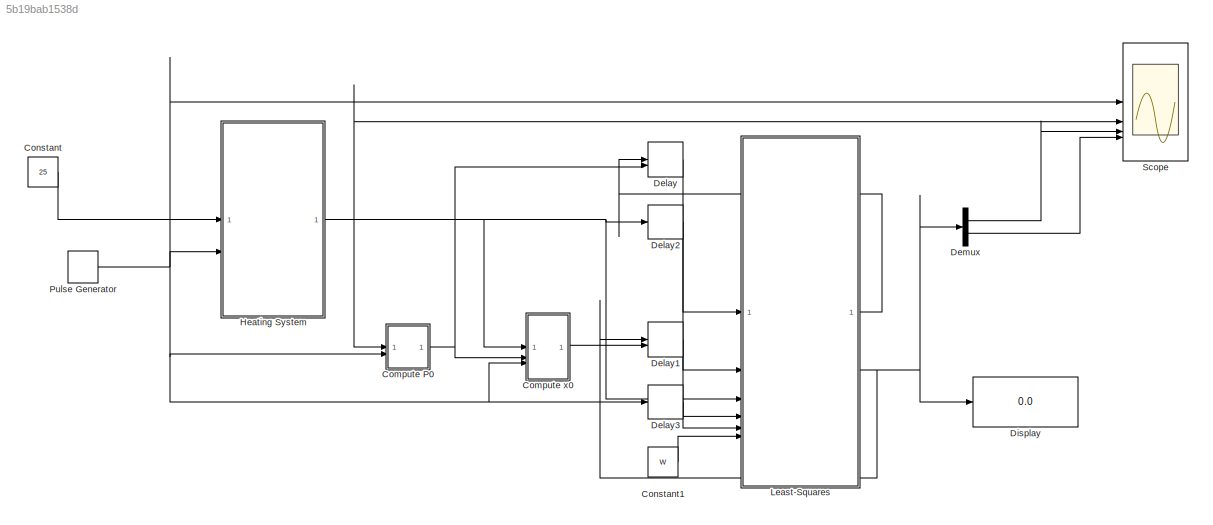
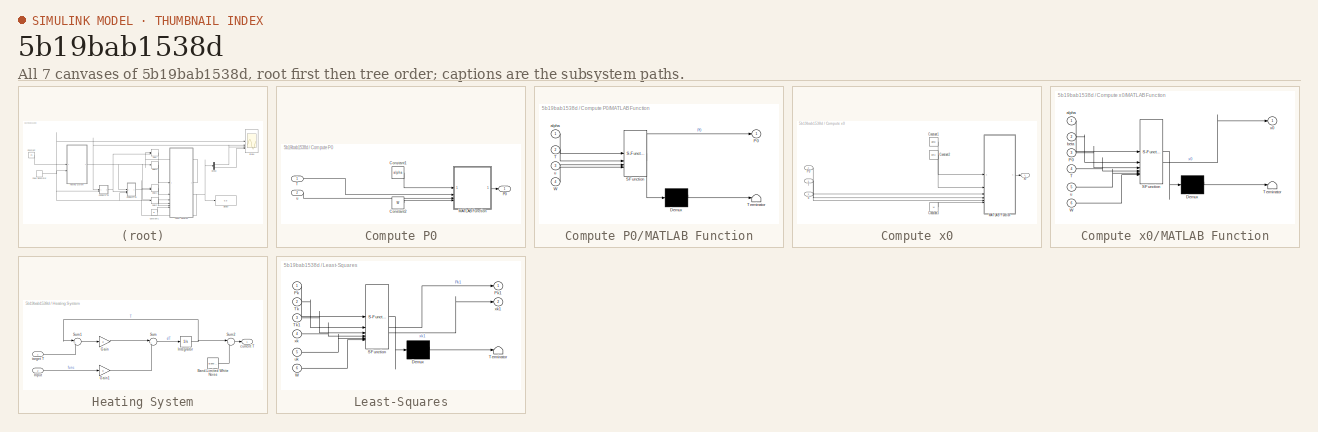
[diagram: thumbnail index - all 7 canvases of the model, root first then tree order]
MODEL slx_5b19bab1538d
KIND model
CONFIG AbsTol = auto
CONFIG EnableMultiTasking = off
CONFIG FixedStep = auto
CONFIG MaxStep = auto
CONFIG MinStep = auto
CONFIG RelTol = 1e-3
CONFIG SampleTimeConstraint = Unconstrained
CONFIG SolverName = VariableStepAuto
CONFIG StartTime = 0.0
CONFIG StopTime = 400.0
WORKSPACE source: MATLAB code (in-file)
WORKSPACE tau = 20
WORKSPACE Kp = 0.5
WORKSPACE sigma = 0.08
WORKSPACE alpha = 1E3  (= 1000)
WORKSPACE code: beta = [1E-2; 1E-2];
WORKSPACE delta_t = 0.1
WORKSPACE a = -1 / tau  (= -0.05)
WORKSPACE b = Kp / tau  (= 0.025)
WORKSPACE W = 1 / sigma^2  (= 156.25)
BLOCK [SubSystem] Compute P0
BLOCK [Constant] Compute P0/Constant1
  Value = alpha
BLOCK [Constant] Compute P0/Constant2
  Value = W
BLOCK [SubSystem] Compute P0/MATLAB Function
  ErrorFcn = Stateflow.Translate.translate
  PermitHierarchicalResolution = ExplicitOnly
  SFBlockType = MATLAB Function
  TreatAsAtomicUnit = on
BLOCK [Demux] Compute P0/MATLAB Function/ Demux 
  Outputs = 1
BLOCK [S-Function] Compute P0/MATLAB Function/ SFunction 
  EnableBusSupport = on
  FunctionName = sf_sfun
  PortCounts = [4 2]
  SFcnIsStateOwnerBlock = off
  SFunctionDeploymentMode = off
  Tag = Stateflow S-Function 2
BLOCK [Terminator] Compute P0/MATLAB Function/ Terminator 
BLOCK [Outport] Compute P0/MATLAB Function/P0
BLOCK [Inport] Compute P0/MATLAB Function/T
  Port = 2
BLOCK [Inport] Compute P0/MATLAB Function/W
  Port = 4
BLOCK [Inport] Compute P0/MATLAB Function/alpha
BLOCK [Inport] Compute P0/MATLAB Function/u
  Port = 3
BLOCK [Outport] Compute P0/P0
BLOCK [Inport] Compute P0/T
BLOCK [Inport] Compute P0/u
  Port = 2
BLOCK [SubSystem] Compute x0
BLOCK [Constant] Compute x0/Constant1
  Value = alpha
BLOCK [Constant] Compute x0/Constant2
  Value = beta
BLOCK [Constant] Compute x0/Constant3
  Value = W
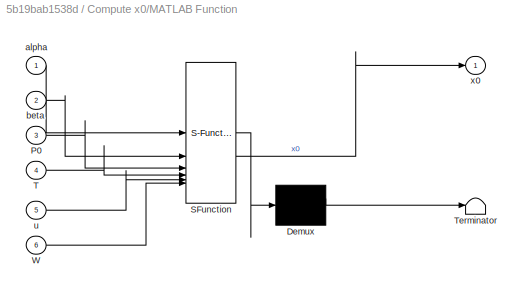
BLOCK [SubSystem] Compute x0/MATLAB Function
  ErrorFcn = Stateflow.Translate.translate
  PermitHierarchicalResolution = ExplicitOnly
  SFBlockType = MATLAB Function
  TreatAsAtomicUnit = on
BLOCK [Demux] Compute x0/MATLAB Function/ Demux 
  Outputs = 1
BLOCK [S-Function] Compute x0/MATLAB Function/ SFunction 
  EnableBusSupport = on
  FunctionName = sf_sfun
  PortCounts = [6 2]
  SFcnIsStateOwnerBlock = off
  SFunctionDeploymentMode = off
  Tag = Stateflow S-Function 3
BLOCK [Terminator] Compute x0/MATLAB Function/ Terminator 
BLOCK [Inport] Compute x0/MATLAB Function/P0
  Port = 3
BLOCK [Inport] Compute x0/MATLAB Function/T
  Port = 4
BLOCK [Inport] Compute x0/MATLAB Function/W
  Port = 6
BLOCK [Inport] Compute x0/MATLAB Function/alpha
BLOCK [Inport] Compute x0/MATLAB Function/beta
  Port = 2
BLOCK [Inport] Compute x0/MATLAB Function/u
  Port = 5
BLOCK [Outport] Compute x0/MATLAB Function/x0
BLOCK [Inport] Compute x0/P0
  Port = 2
BLOCK [Inport] Compute x0/T
BLOCK [Inport] Compute x0/u
  Port = 3
BLOCK [Outport] Compute x0/x0
BLOCK [Constant] Constant
  Value = 25
BLOCK [Constant] Constant1
  Value = W
BLOCK [Delay] Delay
  DelayLength = 1
  InitialCondition = 0
  InitialConditionSource = Input port
  InputPortMap = u0,p4
  SampleTime = delta_t
BLOCK [Delay] Delay1
  DelayLength = 1
  InitialCondition = 0
  InitialConditionSource = Input port
  InputPortMap = u0,p4
  SampleTime = delta_t
BLOCK [Delay] Delay2
  DelayLength = 1
  InitialCondition = 0
  InputPortMap = u0
  SampleTime = delta_t
BLOCK [Delay] Delay3
  DelayLength = 1
  InitialCondition = 0
  InputPortMap = u0
  SampleTime = delta_t
BLOCK [Demux] Demux
  Outputs = 2
BLOCK [Display] Display
  Decimation = 1
BLOCK [SubSystem] Heating System
BLOCK [Reference] Heating System/Band-Limited White Noise  REF=simulink/Sources/Band-Limited
White Noise
  SourceBlock = simulink/Sources/Band-Limited\nWhite Noise
  SourceType = Band-Limited White Noise.
BLOCK [Gain] Heating System/Gain
  Gain = a
BLOCK [Gain] Heating System/Gain1
  Gain = b
BLOCK [Inport] Heating System/Input
  IconDisplay = Signal name
  Port = 2
BLOCK [Integrator] Heating System/Integrator
BLOCK [Sum] Heating System/Sum
  Inputs = |++
BLOCK [Sum] Heating System/Sum1
  Inputs = |+-
BLOCK [Sum] Heating System/Sum2
  Inputs = |++
BLOCK [Outport] Heating System/current T
BLOCK [Inport] Heating System/target T
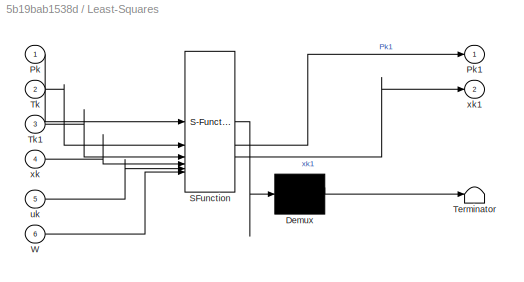
BLOCK [SubSystem] Least-Squares
  ErrorFcn = Stateflow.Translate.translate
  PermitHierarchicalResolution = ExplicitOnly
  SFBlockType = MATLAB Function
  SystemSampleTime = delta_t
  TreatAsAtomicUnit = on
BLOCK [Demux] Least-Squares/ Demux 
  Outputs = 1
BLOCK [S-Function] Least-Squares/ SFunction 
  EnableBusSupport = on
  FunctionName = sf_sfun
  PortCounts = [6 3]
  SFcnIsStateOwnerBlock = off
  SFunctionDeploymentMode = off
  Tag = Stateflow S-Function 1
BLOCK [Terminator] Least-Squares/ Terminator 
BLOCK [Inport] Least-Squares/Pk
BLOCK [Outport] Least-Squares/Pk1
BLOCK [Inport] Least-Squares/Tk
  Port = 2
BLOCK [Inport] Least-Squares/Tk1
  Port = 3
BLOCK [Inport] Least-Squares/W
  Port = 6
BLOCK [Inport] Least-Squares/uk
  Port = 5
BLOCK [Inport] Least-Squares/xk
  Port = 4
BLOCK [Outport] Least-Squares/xk1
  Port = 2
BLOCK [DiscretePulseGenerator] Pulse Generator
  Amplitude = 100
  Period = 10
  PulseType = Time based
  PulseWidth = 50
BLOCK [Scope] Scope
  Floating = off
  NumInputPorts = 4
  ScopeSpecificationString = Simulink.scopes.TimeScopeBlockCfg('CurrentConfiguration', extmgr.ConfigurationSet(extmgr.Configuration('Core','General UI',true),extmgr.Configuration('Core','Source UI',true),extmgr.Configuration('Sources','WiredSimulink',true),extmgr.Configuration('Visuals','Time Domain',true,'SerializedDisplays',{struct('MinYLimReal','-12.5','MaxYLimReal','112.5','YLabelReal','','MinYLimMag','0.00000','MaxYLimMa...<+3386ch>
LINE Compute P0/Constant1:1 -> Compute P0/MATLAB Function:1
LINE Compute P0/Constant2:1 -> Compute P0/MATLAB Function:4
LINE Compute P0/MATLAB Function:1 -> Compute P0/P0:1
LINE Compute P0/T:1 -> Compute P0/MATLAB Function:2
LINE Compute P0/u:1 -> Compute P0/MATLAB Function:3
NET Compute P0:1 -> Compute x0:2, Delay:2
LINE Compute x0/Constant1:1 -> Compute x0/MATLAB Function:1
LINE Compute x0/Constant2:1 -> Compute x0/MATLAB Function:2
LINE Compute x0/Constant3:1 -> Compute x0/MATLAB Function:6
LINE Compute x0/MATLAB Function:1 -> Compute x0/x0:1
LINE Compute x0/P0:1 -> Compute x0/MATLAB Function:3
LINE Compute x0/T:1 -> Compute x0/MATLAB Function:4
LINE Compute x0/u:1 -> Compute x0/MATLAB Function:5
LINE Compute x0:1 -> Delay1:2
LINE Constant1:1 -> Least-Squares:6
LINE Constant:1 -> Heating System:1
LINE Delay1:1 -> Least-Squares:4
LINE Delay2:1 -> Least-Squares:2
LINE Delay3:1 -> Least-Squares:5
LINE Delay:1 -> Least-Squares:1
LINE Demux:1 -> Scope:3
LINE Demux:2 -> Scope:4
LINE Heating System/Band-Limited White Noise:1 -> Heating System/Sum2:2
LINE Heating System/Gain1:1 -> Heating System/Sum:2
LINE Heating System/Gain:1 -> Heating System/Sum:1
LINE Heating System/Input:1 -> Heating System/Gain1:1
NET Heating System/Integrator:1 -> Heating System/Sum1:1, Heating System/Sum2:1
LINE Heating System/Sum1:1 -> Heating System/Gain:1
LINE Heating System/Sum2:1 -> Heating System/current T:1
LINE Heating System/Sum:1 -> Heating System/Integrator:1
LINE Heating System/target T:1 -> Heating System/Sum1:2
NET Heating System:1 -> Compute P0:1, Compute x0:1, Delay2:1, Least-Squares:3, Scope:2
LINE Least-Squares:1 -> Delay:1
NET Least-Squares:2 -> Delay1:1, Demux:1, Display:1
NET Pulse Generator:1 -> Compute P0:2, Compute x0:3, Delay3:1, Heating System:2, Scope:1
note: NET lines group one-source signal fan-out (src -> all destinations, sorted); 1:1 wires keep LINE
CHART Least-Squares states=1 transitions=1
  STATE_LABEL 'eML_blk_kernel()'
  STATE_LABEL 'SCRIPT:\nfunction [Pk1, xk1] = compute_pk1(Pk, Tk, Tk1, xk, uk, W)\nH = [Tk uk];\nHt = transpose(H);\nI = eye(2);\n\nK = Pk * Ht * inv(H * Pk * Ht + inv(W));\nxk1 = xk + K * (Tk1 - H * xk);\nPk1 = (I - K * H) * Pk;\n'
CHART Compute P0/MATLAB Function states=1 transitions=1
  STATE_LABEL 'eML_blk_kernel()'
  STATE_LABEL 'SCRIPT:\nfunction P0 = compute_p0(alpha, T, u, W)\nI = eye(2);\nH = [T u];\nHt = transpose(H);\n\nP0 = inv([1/alpha^2 * I + Ht * W * H]);\n'
CHART Compute x0/MATLAB Function states=1 transitions=1
  STATE_LABEL 'eML_blk_kernel()'
  STATE_LABEL 'SCRIPT:\nfunction x0 = compute_x0(alpha, beta, P0, T, u, W)\nH = [T u];\nHt = transpose(H);\n\nx0 = P0 * (1 / alpha * beta + Ht * W * T);\n'
CHART  states=0 transitions=0
CHART  states=0 transitions=0
CHART  states=0 transitions=0
